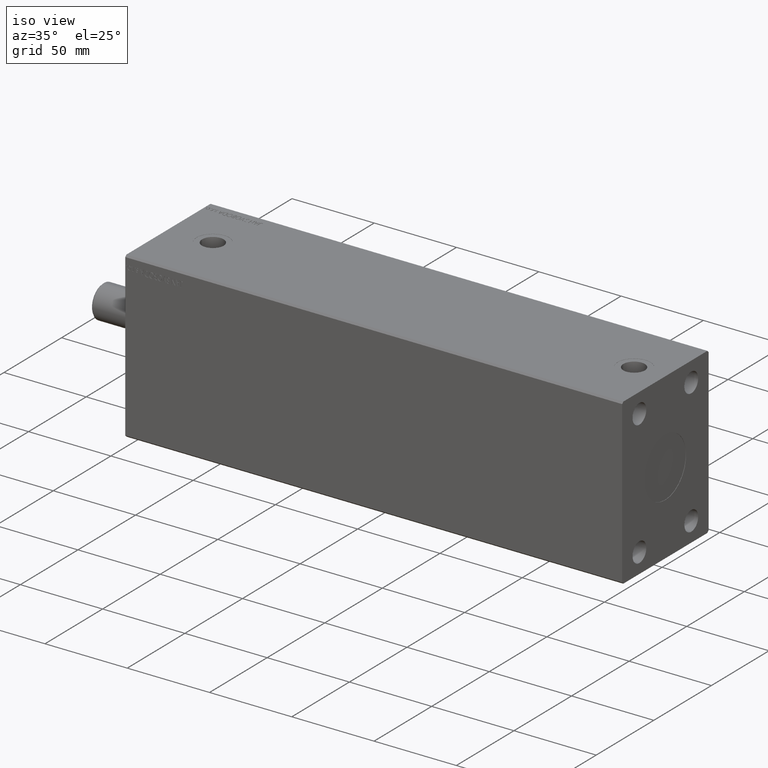
[diagram: clean part render]
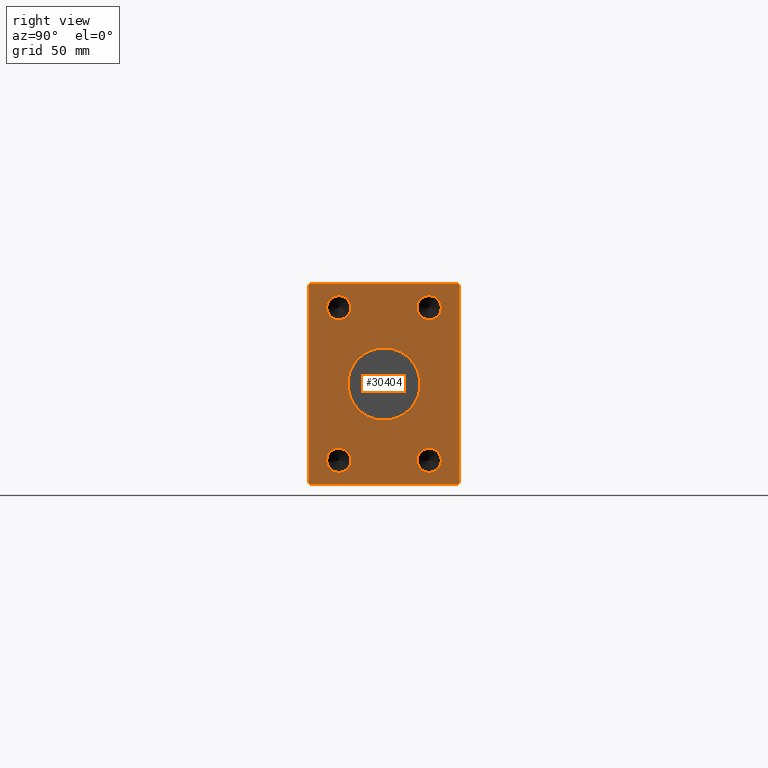
[diagram: tour spotlight — one face highlighted and labeled with its STEP entity id]
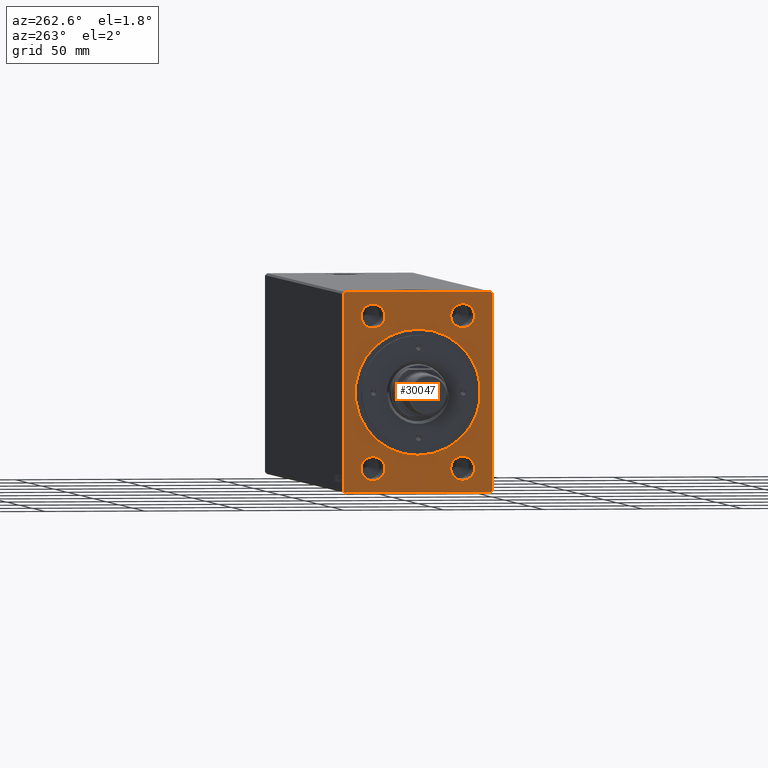
[diagram: tour spotlight — one face highlighted and labeled with its STEP entity id]
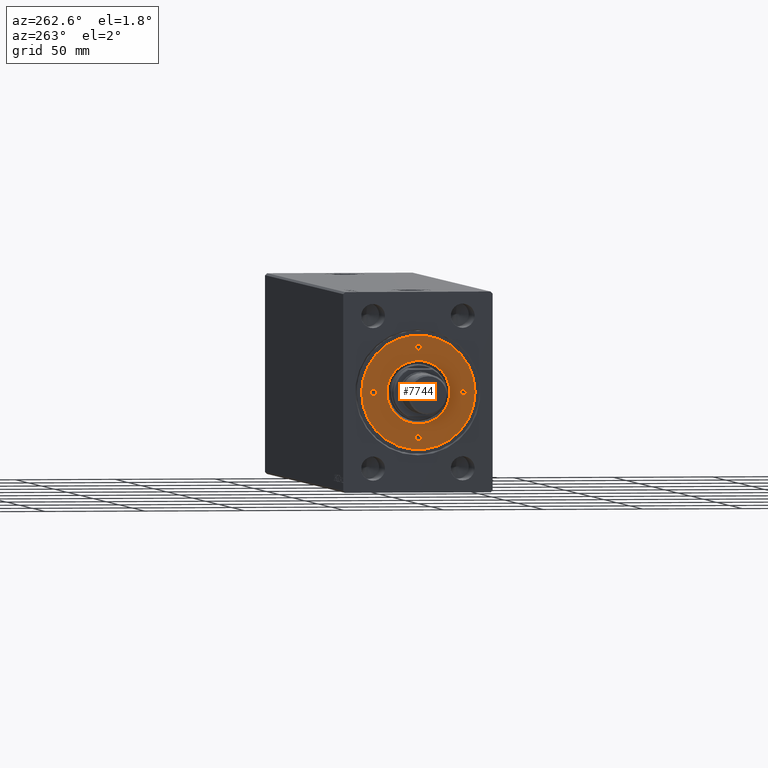
[diagram: tour spotlight — one face highlighted and labeled with its STEP entity id]
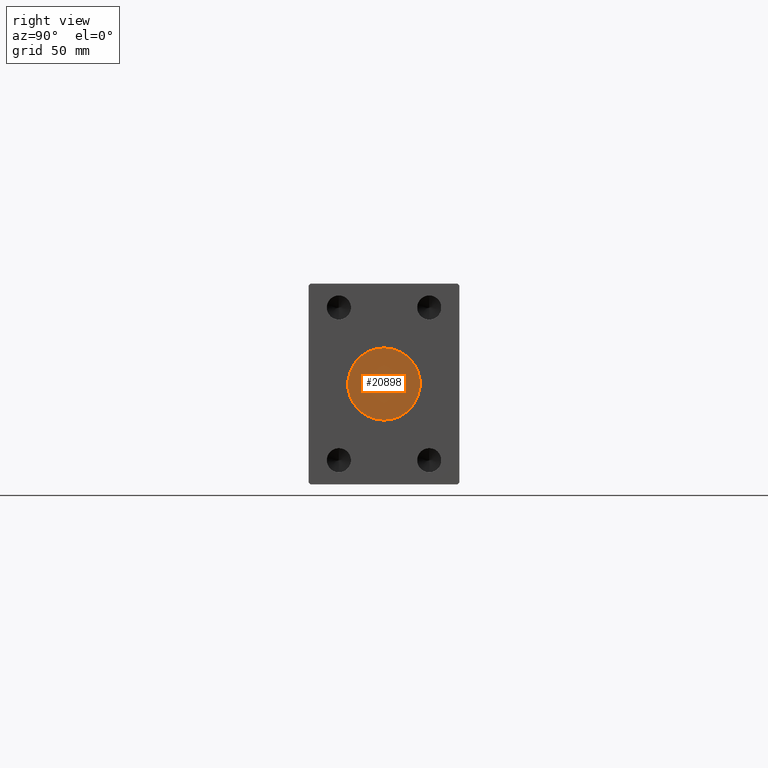
[diagram: tour spotlight — one face highlighted and labeled with its STEP entity id]
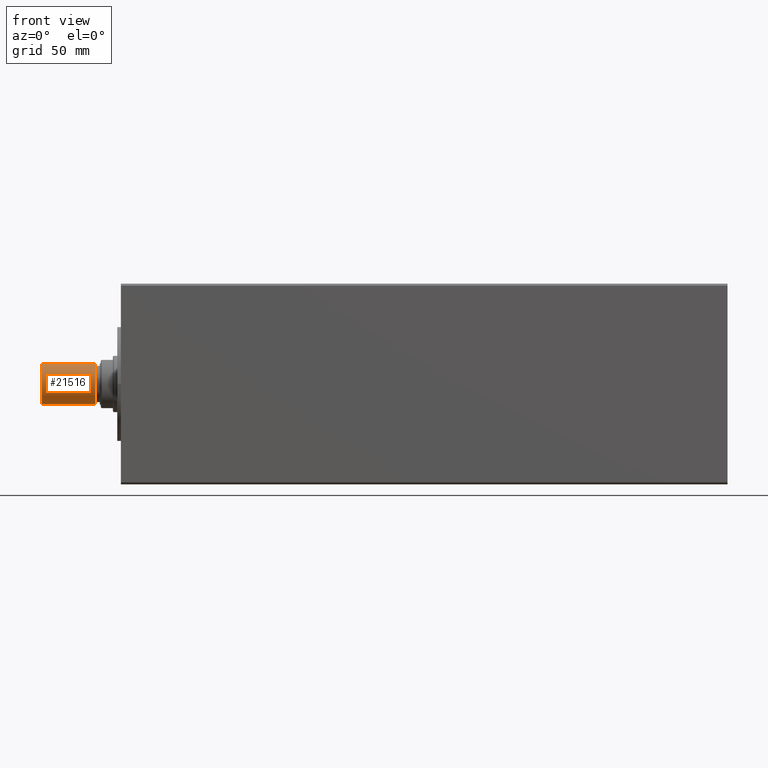
[diagram: tour spotlight — one face highlighted and labeled with its STEP entity id]
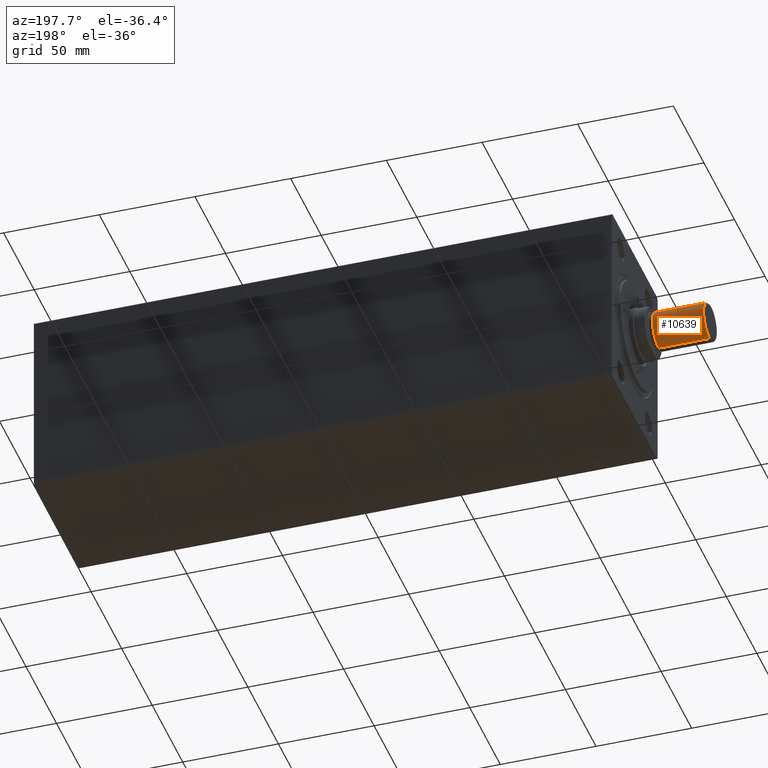
[diagram: tour spotlight — one face highlighted and labeled with its STEP entity id]
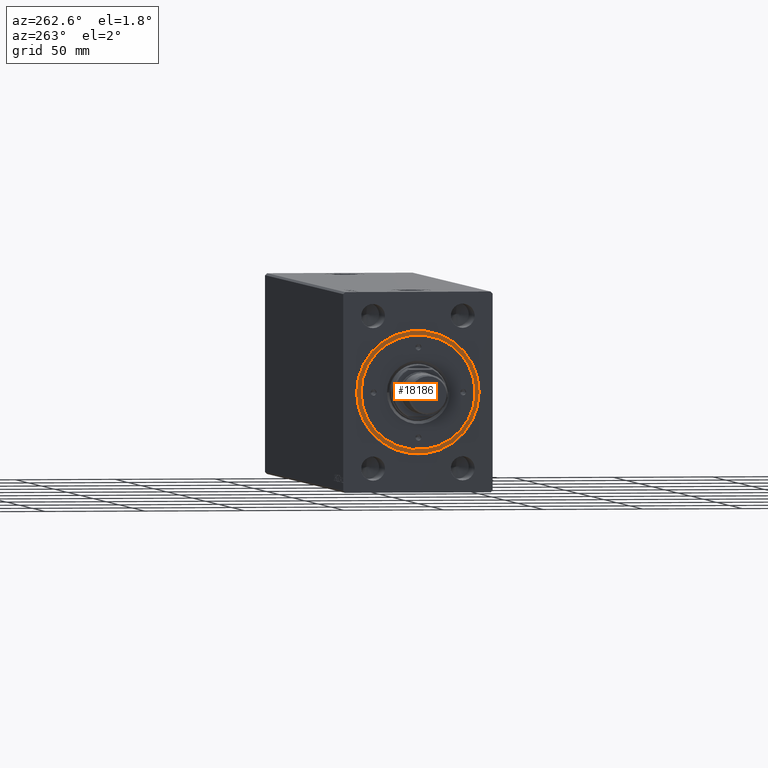
[diagram: tour spotlight — one face highlighted and labeled with its STEP entity id]
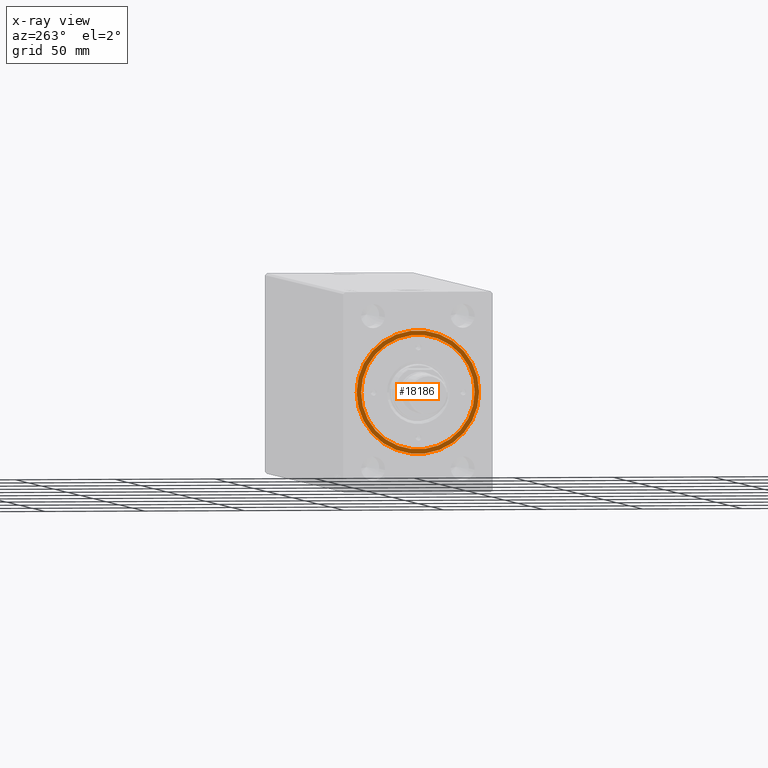
[diagram: x-ray of the same camera — body ghosted, this tour face saturated]
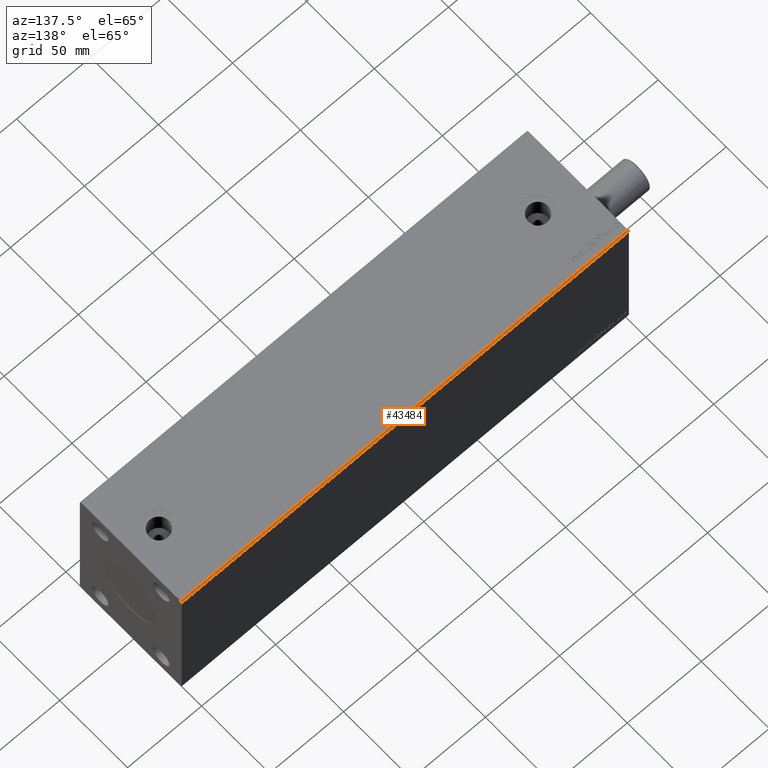
[diagram: tour spotlight — one face highlighted and labeled with its STEP entity id]
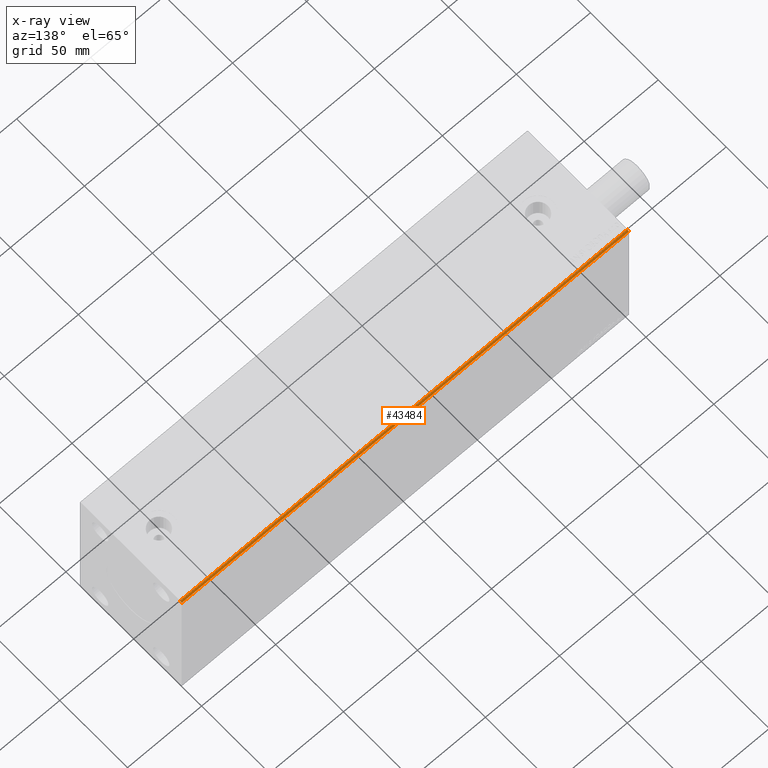
[diagram: x-ray of the same camera — body ghosted, this tour face saturated]
A machine part: a face-by-face anatomy tour. The part has 888 B-rep faces; the first image is the clean iso view, then the 8 largest visible faces are spotlighted one at a time (largest first), each with its STEP entity span.

Face 1 — right view, entity #30404. In plain terms, the highlighted planar face has unit normal (1, 0, 0).
Definition (entity closure, byte-faithful):
#447 = ORIENTED_EDGE ( 'NONE', *, *, #23403, .T. ) ;
#568 = EDGE_CURVE ( 'NONE', #40506, #15033, #5503, .T. ) ;
#651 = CIRCLE ( 'NONE', #22886, 5.999999999999998224 ) ;
#713 = LINE ( 'NONE', #14429, #23835 ) ;
#857 = CARTESIAN_POINT ( 'NONE',  ( 302.0000000000000000, 22.50000000000000000, 32.00000000000000000 ) ) ;
#1110 = VERTEX_POINT ( 'NONE', #31488 ) ;
#1357 = CARTESIAN_POINT ( 'NONE',  ( 302.0000000000000000, -22.50000000000000000, 38.00000000000000000 ) ) ;
#2164 = ORIENTED_EDGE ( 'NONE', *, *, #37255, .F. ) ;
#2390 = VERTEX_POINT ( 'NONE', #22832 ) ;
#2937 = ORIENTED_EDGE ( 'NONE', *, *, #32764, .T. ) ;
#3133 = VERTEX_POINT ( 'NONE', #10376 ) ;
#3378 = AXIS2_PLACEMENT_3D ( 'NONE', #41962, #8002, #29539 ) ;
#3633 = CIRCLE ( 'NONE', #18700, 5.999999999999998224 ) ;
#3730 = EDGE_LOOP ( 'NONE', ( #22723, #8730 ) ) ;
#3776 = CARTESIAN_POINT ( 'NONE',  ( 302.0000000000000000, 22.50000000000000000, -38.00000000000000000 ) ) ;
#5252 = CARTESIAN_POINT ( 'NONE',  ( 302.0000000000000000, -22.50000000000000000, -38.00000000000000711 ) ) ;
#5264 = ORIENTED_EDGE ( 'NONE', *, *, #33171, .F. ) ;
#5503 = LINE ( 'NONE', #36989, #29538 ) ;
#5541 = VERTEX_POINT ( 'NONE', #857 ) ;
#6251 = CARTESIAN_POINT ( 'NONE',  ( 302.0000000000000000, -37.50000000000001421, 48.99999999999998579 ) ) ;
#7141 = EDGE_LOOP ( 'NONE', ( #39308, #2937, #24388, #29770, #447, #28404, #23993, #28852 ) ) ;
#7197 = CARTESIAN_POINT ( 'NONE',  ( 302.0000000000000000, -22.50000000000000000, 38.00000000000000000 ) ) ;
#7270 = CARTESIAN_POINT ( 'NONE',  ( 302.0000000000000000, 36.50000000000000711, -50.00000000000000000 ) ) ;
#8002 = DIRECTION ( 'NONE',  ( 1.000000000000000000, 0.000000000000000000, 0.000000000000000000 ) ) ;
#8138 = CIRCLE ( 'NONE', #13887, 18.00000000000000000 ) ;
#8730 = ORIENTED_EDGE ( 'NONE', *, *, #26295, .F. ) ;
#8978 = EDGE_CURVE ( 'NONE', #9720, #2390, #19766, .T. ) ;
#9064 = DIRECTION ( 'NONE',  ( 1.000000000000000000, -0.000000000000000000, -0.000000000000000000 ) ) ;
#9440 = CARTESIAN_POINT ( 'NONE',  ( 302.0000000000000000, 37.50000000000000711, 49.00000000000000000 ) ) ;
#9720 = VERTEX_POINT ( 'NONE', #23812 ) ;
#10178 = CARTESIAN_POINT ( 'NONE',  ( 302.0000000000000000, 22.50000000000000000, -32.00000000000000000 ) ) ;
#10191 = DIRECTION ( 'NONE',  ( 0.000000000000000000, 0.000000000000000000, 1.000000000000000000 ) ) ;
#10376 = CARTESIAN_POINT ( 'NONE',  ( 302.0000000000000000, 22.50000000000000000, -44.00000000000000000 ) ) ;
#10833 = DIRECTION ( 'NONE',  ( 0.000000000000000000, 0.000000000000000000, -1.000000000000000000 ) ) ;
#10854 = CARTESIAN_POINT ( 'NONE',  ( 302.0000000000000000, -22.50000000000000000, -38.00000000000000711 ) ) ;
#11275 = CIRCLE ( 'NONE', #37821, 5.999999999999998224 ) ;
#11443 = EDGE_CURVE ( 'NONE', #3133, #31020, #26277, .T. ) ;
#12568 = CARTESIAN_POINT ( 'NONE',  ( 302.0000000000000000, -22.50000000000000000, 32.00000000000000000 ) ) ;
#12928 = CIRCLE ( 'NONE', #26543, 5.999999999999998224 ) ;
#13362 = DIRECTION ( 'NONE',  ( 0.000000000000000000, 0.000000000000000000, -1.000000000000000000 ) ) ;
#13887 = AXIS2_PLACEMENT_3D ( 'NONE', #44357, #40314, #34449 ) ;
#13901 = VERTEX_POINT ( 'NONE', #30021 ) ;
#14351 = AXIS2_PLACEMENT_3D ( 'NONE', #1357, #35756, #18431 ) ;
#14429 = CARTESIAN_POINT ( 'NONE',  ( 302.0000000000000000, 37.50000000000000711, -49.00000000000000000 ) ) ;
#14874 = DIRECTION ( 'NONE',  ( 1.000000000000000000, 0.000000000000000000, 0.000000000000000000 ) ) ;
#14950 = EDGE_LOOP ( 'NONE', ( #2164, #42348 ) ) ;
#15033 = VERTEX_POINT ( 'NONE', #30092 ) ;
#15107 = CARTESIAN_POINT ( 'NONE',  ( 302.0000000000000000, 36.50000000000000711, 50.00000000000000000 ) ) ;
#15151 = EDGE_CURVE ( 'NONE', #26651, #30592, #40240, .T. ) ;
#15838 = ORIENTED_EDGE ( 'NONE', *, *, #21412, .F. ) ;
#16093 = CARTESIAN_POINT ( 'NONE',  ( 302.0000000000000000, -22.50000000000000000, 44.00000000000000000 ) ) ;
#16699 = CARTESIAN_POINT ( 'NONE',  ( 302.0000000000000000, -37.50000000000001421, -49.00000000000000000 ) ) ;
#16955 = CARTESIAN_POINT ( 'NONE',  ( 302.0000000000000000, 2.204364238465235428E-15, 18.00000000000000000 ) ) ;
#17063 = FACE_BOUND ( 'NONE', #3730, .T. ) ;
#17343 = CARTESIAN_POINT ( 'NONE',  ( 302.0000000000000000, 0.000000000000000000, 0.000000000000000000 ) ) ;
#17424 = VECTOR ( 'NONE', #31379, 1000.000000000000114 ) ;
#18414 = EDGE_LOOP ( 'NONE', ( #26695, #25812 ) ) ;
#18431 = DIRECTION ( 'NONE',  ( 0.000000000000000000, 0.000000000000000000, -1.000000000000000000 ) ) ;
#18552 = DIRECTION ( 'NONE',  ( 1.000000000000000000, -0.000000000000000000, -0.000000000000000000 ) ) ;
#18700 = AXIS2_PLACEMENT_3D ( 'NONE', #35876, #18552, #22366 ) ;
#18908 = ORIENTED_EDGE ( 'NONE', *, *, #22369, .F. ) ;
#19766 = CIRCLE ( 'NONE', #30518, 5.999999999999998224 ) ;
#19873 = VERTEX_POINT ( 'NONE', #16093 ) ;
#20142 = EDGE_CURVE ( 'NONE', #2390, #9720, #651, .T. ) ;
#20277 = CARTESIAN_POINT ( 'NONE',  ( 302.0000000000000000, 22.50000000000000000, 38.00000000000000000 ) ) ;
#20333 = CARTESIAN_POINT ( 'NONE',  ( 302.0000000000000000, 36.50000000000000711, 50.00000000000000000 ) ) ;
#20760 = DIRECTION ( 'NONE',  ( 0.000000000000000000, 0.7071067811865474617, 0.7071067811865474617 ) ) ;
#20902 = DIRECTION ( 'NONE',  ( 1.000000000000000000, -0.000000000000000000, -0.000000000000000000 ) ) ;
#21005 = CARTESIAN_POINT ( 'NONE',  ( 302.0000000000000000, -37.50000000000001421, 48.99999999999998579 ) ) ;
#21250 = FACE_BOUND ( 'NONE', #18414, .T. ) ;
#21320 = EDGE_LOOP ( 'NONE', ( #5264, #18908 ) ) ;
#21412 = EDGE_CURVE ( 'NONE', #31020, #3133, #32251, .T. ) ;
#22205 = AXIS2_PLACEMENT_3D ( 'NONE', #3776, #31862, #24890 ) ;
#22366 = DIRECTION ( 'NONE',  ( 0.000000000000000000, 0.000000000000000000, -1.000000000000000000 ) ) ;
#22369 = EDGE_CURVE ( 'NONE', #19873, #44095, #40203, .T. ) ;
#22432 = DIRECTION ( 'NONE',  ( 0.000000000000000000, 0.000000000000000000, -1.000000000000000000 ) ) ;
#22723 = ORIENTED_EDGE ( 'NONE', *, *, #30915, .F. ) ;
#22832 = CARTESIAN_POINT ( 'NONE',  ( 302.0000000000000000, -22.50000000000000000, -44.00000000000000711 ) ) ;
#22886 = AXIS2_PLACEMENT_3D ( 'NONE', #5252, #39646, #43485 ) ;
#23027 = DIRECTION ( 'NONE',  ( 0.000000000000000000, 1.000000000000000000, 0.000000000000000000 ) ) ;
#23043 = AXIS2_PLACEMENT_3D ( 'NONE', #17343, #14874, #10833 ) ;
#23403 = EDGE_CURVE ( 'NONE', #31982, #40506, #24040, .T. ) ;
#23509 = VECTOR ( 'NONE', #43840, 1000.000000000000114 ) ;
#23812 = CARTESIAN_POINT ( 'NONE',  ( 302.0000000000000000, -22.50000000000000000, -32.00000000000000711 ) ) ;
#23835 = VECTOR ( 'NONE', #10191, 1000.000000000000000 ) ;
#23993 = ORIENTED_EDGE ( 'NONE', *, *, #29924, .T. ) ;
#24040 = LINE ( 'NONE', #37762, #28772 ) ;
#24388 = ORIENTED_EDGE ( 'NONE', *, *, #43013, .T. ) ;
#24417 = CARTESIAN_POINT ( 'NONE',  ( 302.0000000000000000, -36.50000000000001421, 49.99999999999998579 ) ) ;
#24849 = PLANE ( 'NONE',  #3378 ) ;
#24890 = DIRECTION ( 'NONE',  ( 0.000000000000000000, 0.000000000000000000, -1.000000000000000000 ) ) ;
#24951 = CARTESIAN_POINT ( 'NONE',  ( 302.0000000000000000, 37.50000000000000711, 49.00000000000000000 ) ) ;
#25140 = VECTOR ( 'NONE', #34910, 1000.000000000000000 ) ;
#25812 = ORIENTED_EDGE ( 'NONE', *, *, #8978, .F. ) ;
#26277 = CIRCLE ( 'NONE', #42833, 5.999999999999998224 ) ;
#26295 = EDGE_CURVE ( 'NONE', #13901, #5541, #3633, .T. ) ;
#26543 = AXIS2_PLACEMENT_3D ( 'NONE', #7197, #20902, #34631 ) ;
#26651 = VERTEX_POINT ( 'NONE', #24951 ) ;
#26695 = ORIENTED_EDGE ( 'NONE', *, *, #20142, .F. ) ;
#26897 = EDGE_LOOP ( 'NONE', ( #34063, #15838 ) ) ;
#27203 = VERTEX_POINT ( 'NONE', #16955 ) ;
#27268 = LINE ( 'NONE', #15107, #25140 ) ;
#27376 = CIRCLE ( 'NONE', #23043, 18.00000000000000000 ) ;
#27779 = LINE ( 'NONE', #24417, #17424 ) ;
#27926 = LINE ( 'NONE', #7270, #42541 ) ;
#28208 = FACE_OUTER_BOUND ( 'NONE', #7141, .T. ) ;
#28404 = ORIENTED_EDGE ( 'NONE', *, *, #568, .T. ) ;
#28428 = FACE_BOUND ( 'NONE', #26897, .T. ) ;
#28565 = CARTESIAN_POINT ( 'NONE',  ( 302.0000000000000000, -36.50000000000001421, 49.99999999999998579 ) ) ;
#28622 = VERTEX_POINT ( 'NONE', #6251 ) ;
#28772 = VECTOR ( 'NONE', #37548, 1000.000000000000114 ) ;
#28852 = ORIENTED_EDGE ( 'NONE', *, *, #38627, .T. ) ;
#29538 = VECTOR ( 'NONE', #23027, 1000.000000000000000 ) ;
#29539 = DIRECTION ( 'NONE',  ( 0.000000000000000000, 0.000000000000000000, -1.000000000000000000 ) ) ;
#29770 = ORIENTED_EDGE ( 'NONE', *, *, #32387, .T. ) ;
#29924 = EDGE_CURVE ( 'NONE', #15033, #1110, #27926, .T. ) ;
#30021 = CARTESIAN_POINT ( 'NONE',  ( 302.0000000000000000, 22.50000000000000000, 44.00000000000000000 ) ) ;
#30092 = CARTESIAN_POINT ( 'NONE',  ( 302.0000000000000000, 36.50000000000000711, -50.00000000000000000 ) ) ;
#30404 = ADVANCED_FACE ( 'NONE', ( #37541, #17063, #21250, #28428, #44500, #28208 ), #24849, .T. ) ;
#30518 = AXIS2_PLACEMENT_3D ( 'NONE', #10854, #38281, #13362 ) ;
#30592 = VERTEX_POINT ( 'NONE', #20333 ) ;
#30915 = EDGE_CURVE ( 'NONE', #5541, #13901, #11275, .T. ) ;
#31020 = VERTEX_POINT ( 'NONE', #10178 ) ;
#31379 = DIRECTION ( 'NONE',  ( 0.000000000000000000, -0.7071067811865474617, -0.7071067811865474617 ) ) ;
#31488 = CARTESIAN_POINT ( 'NONE',  ( 302.0000000000000000, 37.50000000000000711, -49.00000000000000000 ) ) ;
#31862 = DIRECTION ( 'NONE',  ( 1.000000000000000000, -0.000000000000000000, -0.000000000000000000 ) ) ;
#31982 = VERTEX_POINT ( 'NONE', #16699 ) ;
#32138 = CARTESIAN_POINT ( 'NONE',  ( 302.0000000000000000, 0.000000000000000000, -18.00000000000000000 ) ) ;
#32251 = CIRCLE ( 'NONE', #22205, 5.999999999999998224 ) ;
#32387 = EDGE_CURVE ( 'NONE', #28622, #31982, #37451, .T. ) ;
#32764 = EDGE_CURVE ( 'NONE', #30592, #44332, #27268, .T. ) ;
#33171 = EDGE_CURVE ( 'NONE', #44095, #19873, #12928, .T. ) ;
#33234 = CARTESIAN_POINT ( 'NONE',  ( 302.0000000000000000, 22.50000000000000000, -38.00000000000000000 ) ) ;
#34054 = VERTEX_POINT ( 'NONE', #32138 ) ;
#34063 = ORIENTED_EDGE ( 'NONE', *, *, #11443, .F. ) ;
#34235 = VECTOR ( 'NONE', #40822, 1000.000000000000000 ) ;
#34449 = DIRECTION ( 'NONE',  ( 0.000000000000000000, 0.000000000000000000, -1.000000000000000000 ) ) ;
#34631 = DIRECTION ( 'NONE',  ( 0.000000000000000000, 0.000000000000000000, -1.000000000000000000 ) ) ;
#34910 = DIRECTION ( 'NONE',  ( 0.000000000000000000, -1.000000000000000000, -1.901066822988281457E-16 ) ) ;
#35756 = DIRECTION ( 'NONE',  ( 1.000000000000000000, -0.000000000000000000, -0.000000000000000000 ) ) ;
#35876 = CARTESIAN_POINT ( 'NONE',  ( 302.0000000000000000, 22.50000000000000000, 38.00000000000000000 ) ) ;
#36989 = CARTESIAN_POINT ( 'NONE',  ( 302.0000000000000000, -36.50000000000000711, -50.00000000000000000 ) ) ;
#37255 = EDGE_CURVE ( 'NONE', #34054, #27203, #27376, .T. ) ;
#37451 = LINE ( 'NONE', #21005, #34235 ) ;
#37541 = FACE_BOUND ( 'NONE', #14950, .T. ) ;
#37548 = DIRECTION ( 'NONE',  ( 0.000000000000000000, 0.7071067811865500152, -0.7071067811865451302 ) ) ;
#37762 = CARTESIAN_POINT ( 'NONE',  ( 302.0000000000000000, -37.50000000000001421, -49.00000000000000000 ) ) ;
#37821 = AXIS2_PLACEMENT_3D ( 'NONE', #20277, #9064, #40535 ) ;
#38281 = DIRECTION ( 'NONE',  ( 1.000000000000000000, -0.000000000000000000, -0.000000000000000000 ) ) ;
#38627 = EDGE_CURVE ( 'NONE', #1110, #26651, #713, .T. ) ;
#38943 = CARTESIAN_POINT ( 'NONE',  ( 302.0000000000000000, -36.50000000000000711, -50.00000000000000000 ) ) ;
#39308 = ORIENTED_EDGE ( 'NONE', *, *, #15151, .T. ) ;
#39526 = DIRECTION ( 'NONE',  ( 1.000000000000000000, -0.000000000000000000, -0.000000000000000000 ) ) ;
#39646 = DIRECTION ( 'NONE',  ( 1.000000000000000000, -0.000000000000000000, -0.000000000000000000 ) ) ;
#40203 = CIRCLE ( 'NONE', #14351, 5.999999999999998224 ) ;
#40240 = LINE ( 'NONE', #9440, #23509 ) ;
#40314 = DIRECTION ( 'NONE',  ( 1.000000000000000000, 0.000000000000000000, 0.000000000000000000 ) ) ;
#40506 = VERTEX_POINT ( 'NONE', #38943 ) ;
#40535 = DIRECTION ( 'NONE',  ( 0.000000000000000000, 0.000000000000000000, -1.000000000000000000 ) ) ;
#40822 = DIRECTION ( 'NONE',  ( 0.000000000000000000, 0.000000000000000000, -1.000000000000000000 ) ) ;
#41962 = CARTESIAN_POINT ( 'NONE',  ( 302.0000000000000000, 0.000000000000000000, 0.000000000000000000 ) ) ;
#42348 = ORIENTED_EDGE ( 'NONE', *, *, #42860, .F. ) ;
#42541 = VECTOR ( 'NONE', #20760, 1000.000000000000114 ) ;
#42833 = AXIS2_PLACEMENT_3D ( 'NONE', #33234, #39526, #22432 ) ;
#42860 = EDGE_CURVE ( 'NONE', #27203, #34054, #8138, .T. ) ;
#43013 = EDGE_CURVE ( 'NONE', #44332, #28622, #27779, .T. ) ;
#43485 = DIRECTION ( 'NONE',  ( 0.000000000000000000, 0.000000000000000000, -1.000000000000000000 ) ) ;
#43840 = DIRECTION ( 'NONE',  ( 0.000000000000000000, -0.7071067811865474617, 0.7071067811865474617 ) ) ;
#44095 = VERTEX_POINT ( 'NONE', #12568 ) ;
#44332 = VERTEX_POINT ( 'NONE', #28565 ) ;
#44357 = CARTESIAN_POINT ( 'NONE',  ( 302.0000000000000000, 0.000000000000000000, 0.000000000000000000 ) ) ;
#44500 = FACE_BOUND ( 'NONE', #21320, .T. ) ;

Face 2 — auxiliary view, entity #30047. In plain terms, the highlighted planar face has unit normal (1, 0, 0).
Definition (entity closure, byte-faithful):
#632 = CARTESIAN_POINT ( 'NONE',  ( 0.000000000000000000, 37.50000000000000711, 49.00000000000000000 ) ) ;
#659 = ORIENTED_EDGE ( 'NONE', *, *, #23776, .F. ) ;
#807 = CARTESIAN_POINT ( 'NONE',  ( 0.000000000000000000, -36.50000000000001421, 49.99999999999998579 ) ) ;
#860 = DIRECTION ( 'NONE',  ( -1.000000000000000000, -0.000000000000000000, -0.000000000000000000 ) ) ;
#1024 = EDGE_LOOP ( 'NONE', ( #2829, #31582 ) ) ;
#1083 = EDGE_CURVE ( 'NONE', #29889, #35748, #28543, .T. ) ;
#1174 = ORIENTED_EDGE ( 'NONE', *, *, #17346, .F. ) ;
#1481 = LINE ( 'NONE', #7563, #2777 ) ;
#1598 = VERTEX_POINT ( 'NONE', #4362 ) ;
#1949 = CARTESIAN_POINT ( 'NONE',  ( 2.449293598294703949E-16, -22.50000000000000000, 44.00000000000000000 ) ) ;
#2005 = CIRCLE ( 'NONE', #32132, 5.999999999999998224 ) ;
#2526 = CARTESIAN_POINT ( 'NONE',  ( 0.000000000000000000, 0.000000000000000000, 0.000000000000000000 ) ) ;
#2744 = FACE_BOUND ( 'NONE', #7757, .T. ) ;
#2777 = VECTOR ( 'NONE', #4407, 1000.000000000000114 ) ;
#2829 = ORIENTED_EDGE ( 'NONE', *, *, #16308, .F. ) ;
#3747 = CARTESIAN_POINT ( 'NONE',  ( 0.000000000000000000, 0.000000000000000000, 0.000000000000000000 ) ) ;
#4362 = CARTESIAN_POINT ( 'NONE',  ( 2.449293598294703949E-16, 22.50000000000000000, 44.00000000000000000 ) ) ;
#4407 = DIRECTION ( 'NONE',  ( 0.000000000000000000, 0.7071067811865474617, 0.7071067811865474617 ) ) ;
#4564 = ORIENTED_EDGE ( 'NONE', *, *, #30006, .F. ) ;
#4845 = DIRECTION ( 'NONE',  ( 0.000000000000000000, 0.7071067811865500152, -0.7071067811865451302 ) ) ;
#5263 = AXIS2_PLACEMENT_3D ( 'NONE', #18382, #860, #14576 ) ;
#5938 = VECTOR ( 'NONE', #38401, 1000.000000000000114 ) ;
#7106 = ORIENTED_EDGE ( 'NONE', *, *, #1083, .F. ) ;
#7375 = LINE ( 'NONE', #632, #5938 ) ;
#7563 = CARTESIAN_POINT ( 'NONE',  ( 0.000000000000000000, 36.50000000000000711, -50.00000000000000000 ) ) ;
#7757 = EDGE_LOOP ( 'NONE', ( #659, #1174 ) ) ;
#7863 = VERTEX_POINT ( 'NONE', #13624 ) ;
#8994 = CARTESIAN_POINT ( 'NONE',  ( 2.449293598294703949E-16, -22.50000000000000000, -38.00000000000000711 ) ) ;
#9164 = CARTESIAN_POINT ( 'NONE',  ( 2.449293598294703949E-16, 22.50000000000000000, -38.00000000000000000 ) ) ;
#9502 = FACE_OUTER_BOUND ( 'NONE', #18038, .T. ) ;
#9518 = AXIS2_PLACEMENT_3D ( 'NONE', #2526, #36485, #29930 ) ;
#9700 = EDGE_CURVE ( 'NONE', #7863, #22478, #32667, .T. ) ;
#10111 = CARTESIAN_POINT ( 'NONE',  ( 2.449293598294703949E-16, -22.50000000000000000, 32.00000000000000000 ) ) ;
#10452 = AXIS2_PLACEMENT_3D ( 'NONE', #8994, #33042, #18875 ) ;
#10514 = EDGE_LOOP ( 'NONE', ( #41547, #28732 ) ) ;
#10567 = DIRECTION ( 'NONE',  ( 0.000000000000000000, 0.000000000000000000, 1.000000000000000000 ) ) ;
#10603 = CARTESIAN_POINT ( 'NONE',  ( 0.000000000000000000, 3.851514183318432716E-15, -31.45000000000005969 ) ) ;
#10883 = VERTEX_POINT ( 'NONE', #807 ) ;
#11262 = CARTESIAN_POINT ( 'NONE',  ( 0.000000000000000000, -37.50000000000001421, 48.99999999999998579 ) ) ;
#11728 = CIRCLE ( 'NONE', #5263, 5.999999999999998224 ) ;
#12185 = DIRECTION ( 'NONE',  ( 0.000000000000000000, -1.000000000000000000, -1.901066822988281457E-16 ) ) ;
#12430 = LINE ( 'NONE', #30384, #29563 ) ;
#12819 = CARTESIAN_POINT ( 'NONE',  ( 2.449293598294703949E-16, 22.50000000000000000, -38.00000000000000000 ) ) ;
#12834 = DIRECTION ( 'NONE',  ( 0.000000000000000000, 0.000000000000000000, -1.000000000000000000 ) ) ;
#13440 = CARTESIAN_POINT ( 'NONE',  ( 2.449293598294703949E-16, 22.50000000000000000, 38.00000000000000000 ) ) ;
#13624 = CARTESIAN_POINT ( 'NONE',  ( 2.449293598294703949E-16, -22.50000000000000000, -32.00000000000000711 ) ) ;
#13847 = VERTEX_POINT ( 'NONE', #1949 ) ;
#14479 = CIRCLE ( 'NONE', #25951, 31.45000000000005969 ) ;
#14576 = DIRECTION ( 'NONE',  ( 0.000000000000000000, 0.000000000000000000, 1.000000000000000000 ) ) ;
#14735 = ORIENTED_EDGE ( 'NONE', *, *, #24875, .F. ) ;
#14879 = CIRCLE ( 'NONE', #17026, 5.999999999999998224 ) ;
#14937 = CIRCLE ( 'NONE', #21399, 5.999999999999998224 ) ;
#15070 = DIRECTION ( 'NONE',  ( -1.000000000000000000, -0.000000000000000000, -0.000000000000000000 ) ) ;
#15149 = EDGE_CURVE ( 'NONE', #26598, #32466, #29942, .T. ) ;
#15277 = CIRCLE ( 'NONE', #43282, 5.999999999999998224 ) ;
#15396 = EDGE_CURVE ( 'NONE', #32466, #26598, #14879, .T. ) ;
#15908 = DIRECTION ( 'NONE',  ( 0.000000000000000000, 0.000000000000000000, 1.000000000000000000 ) ) ;
#16194 = CARTESIAN_POINT ( 'NONE',  ( 0.000000000000000000, 0.000000000000000000, 0.000000000000000000 ) ) ;
#16308 = EDGE_CURVE ( 'NONE', #1598, #37609, #2005, .T. ) ;
#16671 = EDGE_CURVE ( 'NONE', #39757, #17292, #33392, .T. ) ;
#17026 = AXIS2_PLACEMENT_3D ( 'NONE', #9164, #43568, #40182 ) ;
#17106 = DIRECTION ( 'NONE',  ( -1.000000000000000000, -0.000000000000000000, -0.000000000000000000 ) ) ;
#17292 = VERTEX_POINT ( 'NONE', #22930 ) ;
#17346 = EDGE_CURVE ( 'NONE', #22538, #13847, #44384, .T. ) ;
#17432 = ORIENTED_EDGE ( 'NONE', *, *, #18839, .F. ) ;
#17589 = VERTEX_POINT ( 'NONE', #37000 ) ;
#17856 = ORIENTED_EDGE ( 'NONE', *, *, #16671, .F. ) ;
#17982 = LINE ( 'NONE', #11262, #23917 ) ;
#18038 = EDGE_LOOP ( 'NONE', ( #40797, #7106, #17432, #17856, #44112, #14735, #4564, #23935 ) ) ;
#18058 = EDGE_CURVE ( 'NONE', #37609, #1598, #14937, .T. ) ;
#18081 = VECTOR ( 'NONE', #32160, 1000.000000000000000 ) ;
#18382 = CARTESIAN_POINT ( 'NONE',  ( 2.449293598294703949E-16, -22.50000000000000000, -38.00000000000000711 ) ) ;
#18472 = LINE ( 'NONE', #29023, #25284 ) ;
#18646 = DIRECTION ( 'NONE',  ( 0.000000000000000000, 0.000000000000000000, 1.000000000000000000 ) ) ;
#18839 = EDGE_CURVE ( 'NONE', #17292, #29889, #1481, .T. ) ;
#18875 = DIRECTION ( 'NONE',  ( 0.000000000000000000, 0.000000000000000000, 1.000000000000000000 ) ) ;
#19214 = CARTESIAN_POINT ( 'NONE',  ( 0.000000000000000000, -36.50000000000000711, -50.00000000000000000 ) ) ;
#20615 = AXIS2_PLACEMENT_3D ( 'NONE', #12819, #37311, #26505 ) ;
#21106 = CARTESIAN_POINT ( 'NONE',  ( 2.449293598294703949E-16, 22.50000000000000000, 32.00000000000000000 ) ) ;
#21399 = AXIS2_PLACEMENT_3D ( 'NONE', #36200, #15070, #18646 ) ;
#22478 = VERTEX_POINT ( 'NONE', #37753 ) ;
#22538 = VERTEX_POINT ( 'NONE', #10111 ) ;
#22748 = PLANE ( 'NONE',  #9518 ) ;
#22930 = CARTESIAN_POINT ( 'NONE',  ( 0.000000000000000000, 36.50000000000000711, -50.00000000000000000 ) ) ;
#22968 = FACE_BOUND ( 'NONE', #10514, .T. ) ;
#23266 = DIRECTION ( 'NONE',  ( 0.000000000000000000, 1.000000000000000000, 0.000000000000000000 ) ) ;
#23776 = EDGE_CURVE ( 'NONE', #13847, #22538, #15277, .T. ) ;
#23917 = VECTOR ( 'NONE', #38020, 1000.000000000000000 ) ;
#23935 = ORIENTED_EDGE ( 'NONE', *, *, #40448, .F. ) ;
#24180 = EDGE_CURVE ( 'NONE', #35748, #42435, #7375, .T. ) ;
#24875 = EDGE_CURVE ( 'NONE', #42218, #24996, #17982, .T. ) ;
#24891 = VECTOR ( 'NONE', #4845, 1000.000000000000114 ) ;
#24974 = AXIS2_PLACEMENT_3D ( 'NONE', #37558, #40490, #10567 ) ;
#24996 = VERTEX_POINT ( 'NONE', #25843 ) ;
#25182 = EDGE_CURVE ( 'NONE', #22478, #7863, #11728, .T. ) ;
#25284 = VECTOR ( 'NONE', #12185, 1000.000000000000000 ) ;
#25526 = DIRECTION ( 'NONE',  ( 1.000000000000000000, 0.000000000000000000, 0.000000000000000000 ) ) ;
#25843 = CARTESIAN_POINT ( 'NONE',  ( 0.000000000000000000, -37.50000000000001421, -49.00000000000000000 ) ) ;
#25951 = AXIS2_PLACEMENT_3D ( 'NONE', #16194, #29887, #12834 ) ;
#26181 = LINE ( 'NONE', #36090, #24891 ) ;
#26250 = EDGE_LOOP ( 'NONE', ( #36741, #36167 ) ) ;
#26505 = DIRECTION ( 'NONE',  ( 0.000000000000000000, 0.000000000000000000, 1.000000000000000000 ) ) ;
#26598 = VERTEX_POINT ( 'NONE', #38671 ) ;
#26913 = CARTESIAN_POINT ( 'NONE',  ( 0.000000000000000000, 37.50000000000000711, 49.00000000000000000 ) ) ;
#27013 = CARTESIAN_POINT ( 'NONE',  ( 2.449293598294703949E-16, -22.50000000000000000, 38.00000000000000000 ) ) ;
#28401 = EDGE_CURVE ( 'NONE', #17589, #35275, #14479, .T. ) ;
#28543 = LINE ( 'NONE', #38912, #18081 ) ;
#28732 = ORIENTED_EDGE ( 'NONE', *, *, #43058, .T. ) ;
#29023 = CARTESIAN_POINT ( 'NONE',  ( 0.000000000000000000, 36.50000000000000711, 50.00000000000000000 ) ) ;
#29563 = VECTOR ( 'NONE', #36256, 1000.000000000000114 ) ;
#29887 = DIRECTION ( 'NONE',  ( 1.000000000000000000, 0.000000000000000000, 0.000000000000000000 ) ) ;
#29889 = VERTEX_POINT ( 'NONE', #37864 ) ;
#29930 = DIRECTION ( 'NONE',  ( 0.000000000000000000, 0.000000000000000000, -1.000000000000000000 ) ) ;
#29942 = CIRCLE ( 'NONE', #20615, 5.999999999999998224 ) ;
#30006 = EDGE_CURVE ( 'NONE', #10883, #42218, #12430, .T. ) ;
#30047 = ADVANCED_FACE ( 'NONE', ( #39849, #43899, #33098, #2744, #22968, #9502 ), #22748, .F. ) ;
#30124 = ORIENTED_EDGE ( 'NONE', *, *, #15396, .F. ) ;
#30384 = CARTESIAN_POINT ( 'NONE',  ( 0.000000000000000000, -36.50000000000001421, 49.99999999999998579 ) ) ;
#30419 = EDGE_CURVE ( 'NONE', #24996, #39757, #26181, .T. ) ;
#31582 = ORIENTED_EDGE ( 'NONE', *, *, #18058, .F. ) ;
#32132 = AXIS2_PLACEMENT_3D ( 'NONE', #13440, #40641, #15908 ) ;
#32160 = DIRECTION ( 'NONE',  ( 0.000000000000000000, 0.000000000000000000, 1.000000000000000000 ) ) ;
#32466 = VERTEX_POINT ( 'NONE', #38763 ) ;
#32667 = CIRCLE ( 'NONE', #10452, 5.999999999999998224 ) ;
#33042 = DIRECTION ( 'NONE',  ( -1.000000000000000000, -0.000000000000000000, -0.000000000000000000 ) ) ;
#33098 = FACE_BOUND ( 'NONE', #34039, .T. ) ;
#33392 = LINE ( 'NONE', #19214, #42948 ) ;
#34039 = EDGE_LOOP ( 'NONE', ( #38118, #30124 ) ) ;
#34822 = CARTESIAN_POINT ( 'NONE',  ( 0.000000000000000000, -37.50000000000001421, 48.99999999999998579 ) ) ;
#35275 = VERTEX_POINT ( 'NONE', #10603 ) ;
#35748 = VERTEX_POINT ( 'NONE', #26913 ) ;
#36090 = CARTESIAN_POINT ( 'NONE',  ( 0.000000000000000000, -37.50000000000001421, -49.00000000000000000 ) ) ;
#36115 = AXIS2_PLACEMENT_3D ( 'NONE', #3747, #25526, #42640 ) ;
#36167 = ORIENTED_EDGE ( 'NONE', *, *, #25182, .F. ) ;
#36200 = CARTESIAN_POINT ( 'NONE',  ( 2.449293598294703949E-16, 22.50000000000000000, 38.00000000000000000 ) ) ;
#36256 = DIRECTION ( 'NONE',  ( 0.000000000000000000, -0.7071067811865474617, -0.7071067811865474617 ) ) ;
#36485 = DIRECTION ( 'NONE',  ( 1.000000000000000000, 0.000000000000000000, 0.000000000000000000 ) ) ;
#36741 = ORIENTED_EDGE ( 'NONE', *, *, #9700, .F. ) ;
#37000 = CARTESIAN_POINT ( 'NONE',  ( 0.000000000000000000, 0.000000000000000000, 31.45000000000005969 ) ) ;
#37311 = DIRECTION ( 'NONE',  ( -1.000000000000000000, -0.000000000000000000, -0.000000000000000000 ) ) ;
#37558 = CARTESIAN_POINT ( 'NONE',  ( 2.449293598294703949E-16, -22.50000000000000000, 38.00000000000000000 ) ) ;
#37609 = VERTEX_POINT ( 'NONE', #21106 ) ;
#37753 = CARTESIAN_POINT ( 'NONE',  ( 2.449293598294703949E-16, -22.50000000000000000, -44.00000000000000711 ) ) ;
#37864 = CARTESIAN_POINT ( 'NONE',  ( 0.000000000000000000, 37.50000000000000711, -49.00000000000000000 ) ) ;
#38020 = DIRECTION ( 'NONE',  ( 0.000000000000000000, 0.000000000000000000, -1.000000000000000000 ) ) ;
#38118 = ORIENTED_EDGE ( 'NONE', *, *, #15149, .F. ) ;
#38401 = DIRECTION ( 'NONE',  ( 0.000000000000000000, -0.7071067811865474617, 0.7071067811865474617 ) ) ;
#38671 = CARTESIAN_POINT ( 'NONE',  ( 2.449293598294703949E-16, 22.50000000000000000, -32.00000000000000000 ) ) ;
#38763 = CARTESIAN_POINT ( 'NONE',  ( 2.449293598294703949E-16, 22.50000000000000000, -44.00000000000000000 ) ) ;
#38912 = CARTESIAN_POINT ( 'NONE',  ( 0.000000000000000000, 37.50000000000000711, -49.00000000000000000 ) ) ;
#39757 = VERTEX_POINT ( 'NONE', #41441 ) ;
#39849 = FACE_BOUND ( 'NONE', #1024, .T. ) ;
#40182 = DIRECTION ( 'NONE',  ( 0.000000000000000000, 0.000000000000000000, 1.000000000000000000 ) ) ;
#40439 = CIRCLE ( 'NONE', #36115, 31.45000000000005969 ) ;
#40448 = EDGE_CURVE ( 'NONE', #42435, #10883, #18472, .T. ) ;
#40490 = DIRECTION ( 'NONE',  ( -1.000000000000000000, -0.000000000000000000, -0.000000000000000000 ) ) ;
#40640 = CARTESIAN_POINT ( 'NONE',  ( 0.000000000000000000, 36.50000000000000711, 50.00000000000000000 ) ) ;
#40641 = DIRECTION ( 'NONE',  ( -1.000000000000000000, -0.000000000000000000, -0.000000000000000000 ) ) ;
#40797 = ORIENTED_EDGE ( 'NONE', *, *, #24180, .F. ) ;
#41441 = CARTESIAN_POINT ( 'NONE',  ( 0.000000000000000000, -36.50000000000000711, -50.00000000000000000 ) ) ;
#41547 = ORIENTED_EDGE ( 'NONE', *, *, #28401, .T. ) ;
#42218 = VERTEX_POINT ( 'NONE', #34822 ) ;
#42435 = VERTEX_POINT ( 'NONE', #40640 ) ;
#42640 = DIRECTION ( 'NONE',  ( 0.000000000000000000, 0.000000000000000000, -1.000000000000000000 ) ) ;
#42948 = VECTOR ( 'NONE', #23266, 1000.000000000000000 ) ;
#43058 = EDGE_CURVE ( 'NONE', #35275, #17589, #40439, .T. ) ;
#43282 = AXIS2_PLACEMENT_3D ( 'NONE', #27013, #17106, #44116 ) ;
#43568 = DIRECTION ( 'NONE',  ( -1.000000000000000000, -0.000000000000000000, -0.000000000000000000 ) ) ;
#43899 = FACE_BOUND ( 'NONE', #26250, .T. ) ;
#44112 = ORIENTED_EDGE ( 'NONE', *, *, #30419, .F. ) ;
#44116 = DIRECTION ( 'NONE',  ( 0.000000000000000000, 0.000000000000000000, 1.000000000000000000 ) ) ;
#44384 = CIRCLE ( 'NONE', #24974, 5.999999999999998224 ) ;

Face 3 — auxiliary view, entity #7744. In plain terms, the highlighted planar face has unit normal (-1, 0, 0).
Definition (entity closure, byte-faithful):
#241 = DIRECTION ( 'NONE',  ( 1.000000000000000000, 0.000000000000000000, 0.000000000000000000 ) ) ;
#359 = AXIS2_PLACEMENT_3D ( 'NONE', #22608, #23512, #9135 ) ;
#453 = EDGE_LOOP ( 'NONE', ( #1239, #4649 ) ) ;
#530 = CIRCLE ( 'NONE', #5526, 1.499999999999997780 ) ;
#786 = VERTEX_POINT ( 'NONE', #37424 ) ;
#1239 = ORIENTED_EDGE ( 'NONE', *, *, #9413, .F. ) ;
#1415 = ORIENTED_EDGE ( 'NONE', *, *, #37793, .F. ) ;
#1831 = AXIS2_PLACEMENT_3D ( 'NONE', #16477, #19176, #15814 ) ;
#2123 = CIRCLE ( 'NONE', #10040, 15.79999999999997762 ) ;
#2424 = AXIS2_PLACEMENT_3D ( 'NONE', #24483, #41813, #11230 ) ;
#2766 = EDGE_CURVE ( 'NONE', #33311, #13028, #14573, .T. ) ;
#2940 = DIRECTION ( 'NONE',  ( -0.000000000000000000, -0.000000000000000000, 1.000000000000000000 ) ) ;
#3099 = AXIS2_PLACEMENT_3D ( 'NONE', #27053, #34468, #40777 ) ;
#3973 = CIRCLE ( 'NONE', #1831, 1.499999999999997780 ) ;
#4158 = ORIENTED_EDGE ( 'NONE', *, *, #10737, .T. ) ;
#4261 = DIRECTION ( 'NONE',  ( 0.000000000000000000, 0.000000000000000000, 1.000000000000000000 ) ) ;
#4350 = EDGE_LOOP ( 'NONE', ( #23850, #44407 ) ) ;
#4649 = ORIENTED_EDGE ( 'NONE', *, *, #15628, .F. ) ;
#5210 = CARTESIAN_POINT ( 'NONE',  ( 0.000000000000000000, 0.000000000000000000, 9.999999999999998224 ) ) ;
#5477 = DIRECTION ( 'NONE',  ( -0.000000000000000000, -0.000000000000000000, -1.000000000000000000 ) ) ;
#5518 = VERTEX_POINT ( 'NONE', #41354 ) ;
#5526 = AXIS2_PLACEMENT_3D ( 'NONE', #15178, #25731, #18755 ) ;
#6154 = DIRECTION ( 'NONE',  ( 1.000000000000000000, 0.000000000000000000, 0.000000000000000000 ) ) ;
#7182 = EDGE_CURVE ( 'NONE', #13028, #33311, #16116, .T. ) ;
#7419 = CIRCLE ( 'NONE', #2424, 1.499999999999996891 ) ;
#7744 = ADVANCED_FACE ( 'NONE', ( #13188, #29559, #29788, #9816, #9358, #32735 ), #23051, .T. ) ;
#8131 = VERTEX_POINT ( 'NONE', #15716 ) ;
#9135 = DIRECTION ( 'NONE',  ( 1.000000000000000000, 0.000000000000000000, -0.000000000000000000 ) ) ;
#9358 = FACE_BOUND ( 'NONE', #23772, .T. ) ;
#9413 = EDGE_CURVE ( 'NONE', #17607, #23742, #23370, .T. ) ;
#9474 = DIRECTION ( 'NONE',  ( 1.000000000000000000, 0.000000000000000000, 0.000000000000000000 ) ) ;
#9816 = FACE_BOUND ( 'NONE', #4350, .T. ) ;
#10040 = AXIS2_PLACEMENT_3D ( 'NONE', #32909, #5477, #6154 ) ;
#10737 = EDGE_CURVE ( 'NONE', #20182, #786, #25534, .T. ) ;
#11173 = VERTEX_POINT ( 'NONE', #29218 ) ;
#11230 = DIRECTION ( 'NONE',  ( 1.000000000000000000, 0.000000000000000000, 0.000000000000000000 ) ) ;
#11474 = AXIS2_PLACEMENT_3D ( 'NONE', #35294, #4261, #241 ) ;
#11749 = DIRECTION ( 'NONE',  ( 1.000000000000000000, 0.000000000000000000, 0.000000000000000000 ) ) ;
#13028 = VERTEX_POINT ( 'NONE', #41657 ) ;
#13188 = FACE_BOUND ( 'NONE', #34625, .T. ) ;
#13454 = DIRECTION ( 'NONE',  ( 1.000000000000000000, 0.000000000000000000, 0.000000000000000000 ) ) ;
#13474 = CARTESIAN_POINT ( 'NONE',  ( -28.50000000000000000, 0.000000000000000000, 9.999999999999998224 ) ) ;
#14463 = ORIENTED_EDGE ( 'NONE', *, *, #14991, .F. ) ;
#14573 = CIRCLE ( 'NONE', #3099, 1.499999999999996891 ) ;
#14991 = EDGE_CURVE ( 'NONE', #11173, #22051, #3973, .T. ) ;
#15178 = CARTESIAN_POINT ( 'NONE',  ( 22.50000000000000000, 0.000000000000000000, 9.999999999999998224 ) ) ;
#15628 = EDGE_CURVE ( 'NONE', #23742, #17607, #530, .T. ) ;
#15716 = CARTESIAN_POINT ( 'NONE',  ( 28.50000000000000000, 3.490243377569956456E-15, 9.999999999999998224 ) ) ;
#15814 = DIRECTION ( 'NONE',  ( 1.000000000000000000, 0.000000000000000000, 0.000000000000000000 ) ) ;
#16116 = CIRCLE ( 'NONE', #33350, 1.499999999999996891 ) ;
#16477 = CARTESIAN_POINT ( 'NONE',  ( -22.50000000000000000, 0.000000000000000000, 9.999999999999998224 ) ) ;
#17607 = VERTEX_POINT ( 'NONE', #23038 ) ;
#18755 = DIRECTION ( 'NONE',  ( 1.000000000000000000, 0.000000000000000000, 0.000000000000000000 ) ) ;
#19138 = DIRECTION ( 'NONE',  ( 1.000000000000000000, 0.000000000000000000, 0.000000000000000000 ) ) ;
#19176 = DIRECTION ( 'NONE',  ( -0.000000000000000000, -0.000000000000000000, 1.000000000000000000 ) ) ;
#19493 = DIRECTION ( 'NONE',  ( 1.000000000000000000, 0.000000000000000000, 0.000000000000000000 ) ) ;
#20182 = VERTEX_POINT ( 'NONE', #29498 ) ;
#20933 = EDGE_CURVE ( 'NONE', #786, #20182, #2123, .T. ) ;
#21130 = DIRECTION ( 'NONE',  ( -0.000000000000000000, -0.000000000000000000, 1.000000000000000000 ) ) ;
#22051 = VERTEX_POINT ( 'NONE', #32872 ) ;
#22608 = CARTESIAN_POINT ( 'NONE',  ( 0.000000000000000000, 0.000000000000000000, 9.999999999999998224 ) ) ;
#23038 = CARTESIAN_POINT ( 'NONE',  ( 23.99999999999999645, 0.000000000000000000, 9.999999999999998224 ) ) ;
#23051 = PLANE ( 'NONE',  #359 ) ;
#23121 = CARTESIAN_POINT ( 'NONE',  ( -1.499999999999996891, -22.50000000000000000, 9.999999999999998224 ) ) ;
#23154 = VERTEX_POINT ( 'NONE', #29210 ) ;
#23370 = CIRCLE ( 'NONE', #36274, 1.499999999999997780 ) ;
#23417 = CARTESIAN_POINT ( 'NONE',  ( 21.00000000000000000, 1.836970198721027222E-16, 9.999999999999998224 ) ) ;
#23512 = DIRECTION ( 'NONE',  ( 0.000000000000000000, 0.000000000000000000, 1.000000000000000000 ) ) ;
#23742 = VERTEX_POINT ( 'NONE', #23417 ) ;
#23772 = EDGE_LOOP ( 'NONE', ( #24829, #4158 ) ) ;
#23850 = ORIENTED_EDGE ( 'NONE', *, *, #7182, .F. ) ;
#24483 = CARTESIAN_POINT ( 'NONE',  ( 0.000000000000000000, 22.50000000000000000, 9.999999999999998224 ) ) ;
#24829 = ORIENTED_EDGE ( 'NONE', *, *, #20933, .T. ) ;
#25090 = CIRCLE ( 'NONE', #38043, 1.499999999999996891 ) ;
#25534 = CIRCLE ( 'NONE', #39189, 15.79999999999997762 ) ;
#25731 = DIRECTION ( 'NONE',  ( -0.000000000000000000, -0.000000000000000000, 1.000000000000000000 ) ) ;
#26317 = CARTESIAN_POINT ( 'NONE',  ( 0.000000000000000000, -22.50000000000000000, 9.999999999999998224 ) ) ;
#27053 = CARTESIAN_POINT ( 'NONE',  ( 0.000000000000000000, -22.50000000000000000, 9.999999999999998224 ) ) ;
#29210 = CARTESIAN_POINT ( 'NONE',  ( -1.499999999999996891, 22.50000000000000000, 9.999999999999998224 ) ) ;
#29218 = CARTESIAN_POINT ( 'NONE',  ( -21.00000000000000000, 0.000000000000000000, 9.999999999999998224 ) ) ;
#29498 = CARTESIAN_POINT ( 'NONE',  ( -15.79999999999997407, 1.934941942652814868E-15, 9.999999999999998224 ) ) ;
#29559 = FACE_BOUND ( 'NONE', #43139, .T. ) ;
#29574 = AXIS2_PLACEMENT_3D ( 'NONE', #5210, #35357, #19138 ) ;
#29788 = FACE_BOUND ( 'NONE', #453, .T. ) ;
#30198 = EDGE_LOOP ( 'NONE', ( #43048, #41814 ) ) ;
#30372 = ORIENTED_EDGE ( 'NONE', *, *, #43980, .F. ) ;
#30515 = CARTESIAN_POINT ( 'NONE',  ( -22.50000000000000000, 0.000000000000000000, 9.999999999999998224 ) ) ;
#31350 = DIRECTION ( 'NONE',  ( -0.000000000000000000, -0.000000000000000000, 1.000000000000000000 ) ) ;
#32735 = FACE_OUTER_BOUND ( 'NONE', #30198, .T. ) ;
#32771 = DIRECTION ( 'NONE',  ( -0.000000000000000000, -0.000000000000000000, -1.000000000000000000 ) ) ;
#32872 = CARTESIAN_POINT ( 'NONE',  ( -23.99999999999999645, 1.836970198721027222E-16, 9.999999999999998224 ) ) ;
#32909 = CARTESIAN_POINT ( 'NONE',  ( 0.000000000000000000, 0.000000000000000000, 9.999999999999998224 ) ) ;
#33131 = EDGE_CURVE ( 'NONE', #40880, #8131, #37349, .T. ) ;
#33135 = AXIS2_PLACEMENT_3D ( 'NONE', #30515, #36838, #13454 ) ;
#33311 = VERTEX_POINT ( 'NONE', #23121 ) ;
#33350 = AXIS2_PLACEMENT_3D ( 'NONE', #26317, #2940, #9474 ) ;
#33666 = EDGE_CURVE ( 'NONE', #5518, #23154, #25090, .T. ) ;
#33847 = CIRCLE ( 'NONE', #33135, 1.499999999999997780 ) ;
#34468 = DIRECTION ( 'NONE',  ( -0.000000000000000000, -0.000000000000000000, 1.000000000000000000 ) ) ;
#34625 = EDGE_LOOP ( 'NONE', ( #14463, #1415 ) ) ;
#34747 = CARTESIAN_POINT ( 'NONE',  ( 0.000000000000000000, 22.50000000000000000, 9.999999999999998224 ) ) ;
#35082 = CARTESIAN_POINT ( 'NONE',  ( 22.50000000000000000, 0.000000000000000000, 9.999999999999998224 ) ) ;
#35294 = CARTESIAN_POINT ( 'NONE',  ( 0.000000000000000000, 0.000000000000000000, 9.999999999999998224 ) ) ;
#35302 = DIRECTION ( 'NONE',  ( 1.000000000000000000, 0.000000000000000000, 0.000000000000000000 ) ) ;
#35357 = DIRECTION ( 'NONE',  ( 0.000000000000000000, 0.000000000000000000, 1.000000000000000000 ) ) ;
#36274 = AXIS2_PLACEMENT_3D ( 'NONE', #35082, #21130, #35302 ) ;
#36838 = DIRECTION ( 'NONE',  ( -0.000000000000000000, -0.000000000000000000, 1.000000000000000000 ) ) ;
#37349 = CIRCLE ( 'NONE', #11474, 28.50000000000000000 ) ;
#37424 = CARTESIAN_POINT ( 'NONE',  ( 15.79999999999997407, 0.000000000000000000, 9.999999999999998224 ) ) ;
#37793 = EDGE_CURVE ( 'NONE', #22051, #11173, #33847, .T. ) ;
#38043 = AXIS2_PLACEMENT_3D ( 'NONE', #34747, #31350, #11749 ) ;
#39189 = AXIS2_PLACEMENT_3D ( 'NONE', #39295, #32771, #19493 ) ;
#39295 = CARTESIAN_POINT ( 'NONE',  ( 0.000000000000000000, 0.000000000000000000, 9.999999999999998224 ) ) ;
#39433 = ORIENTED_EDGE ( 'NONE', *, *, #33666, .F. ) ;
#40386 = EDGE_CURVE ( 'NONE', #8131, #40880, #42519, .T. ) ;
#40777 = DIRECTION ( 'NONE',  ( 1.000000000000000000, 0.000000000000000000, 0.000000000000000000 ) ) ;
#40880 = VERTEX_POINT ( 'NONE', #13474 ) ;
#41354 = CARTESIAN_POINT ( 'NONE',  ( 1.499999999999996891, 22.50000000000000000, 9.999999999999998224 ) ) ;
#41657 = CARTESIAN_POINT ( 'NONE',  ( 1.499999999999996891, -22.50000000000000000, 9.999999999999998224 ) ) ;
#41813 = DIRECTION ( 'NONE',  ( -0.000000000000000000, -0.000000000000000000, 1.000000000000000000 ) ) ;
#41814 = ORIENTED_EDGE ( 'NONE', *, *, #40386, .T. ) ;
#42519 = CIRCLE ( 'NONE', #29574, 28.50000000000000000 ) ;
#43048 = ORIENTED_EDGE ( 'NONE', *, *, #33131, .T. ) ;
#43139 = EDGE_LOOP ( 'NONE', ( #39433, #30372 ) ) ;
#43980 = EDGE_CURVE ( 'NONE', #23154, #5518, #7419, .T. ) ;
#44407 = ORIENTED_EDGE ( 'NONE', *, *, #2766, .F. ) ;

Face 4 — right view, entity #20898. In plain terms, the highlighted planar face has unit normal (1, 0, 0).
Definition (entity closure, byte-faithful):
#11655 = DIRECTION ( 'NONE',  ( 1.000000000000000000, 0.000000000000000000, 0.000000000000000000 ) ) ;
#11759 = EDGE_CURVE ( 'NONE', #40567, #26764, #18378, .T. ) ;
#13633 = AXIS2_PLACEMENT_3D ( 'NONE', #23000, #22559, #19405 ) ;
#15394 = ORIENTED_EDGE ( 'NONE', *, *, #26051, .T. ) ;
#16051 = AXIS2_PLACEMENT_3D ( 'NONE', #27246, #11655, #30827 ) ;
#18378 = CIRCLE ( 'NONE', #36338, 18.00000000000000000 ) ;
#19405 = DIRECTION ( 'NONE',  ( 0.000000000000000000, 0.000000000000000000, -1.000000000000000000 ) ) ;
#20898 = ADVANCED_FACE ( 'NONE', ( #29506 ), #29288, .T. ) ;
#21955 = ORIENTED_EDGE ( 'NONE', *, *, #11759, .T. ) ;
#22559 = DIRECTION ( 'NONE',  ( 1.000000000000000000, 0.000000000000000000, 0.000000000000000000 ) ) ;
#23000 = CARTESIAN_POINT ( 'NONE',  ( 301.8000000000000114, 0.000000000000000000, 0.000000000000000000 ) ) ;
#25446 = EDGE_LOOP ( 'NONE', ( #15394, #21955 ) ) ;
#26051 = EDGE_CURVE ( 'NONE', #26764, #40567, #36178, .T. ) ;
#26764 = VERTEX_POINT ( 'NONE', #37307 ) ;
#27246 = CARTESIAN_POINT ( 'NONE',  ( 301.8000000000000114, 0.000000000000000000, 0.000000000000000000 ) ) ;
#27522 = DIRECTION ( 'NONE',  ( 1.000000000000000000, 0.000000000000000000, 0.000000000000000000 ) ) ;
#29288 = PLANE ( 'NONE',  #13633 ) ;
#29506 = FACE_OUTER_BOUND ( 'NONE', #25446, .T. ) ;
#30827 = DIRECTION ( 'NONE',  ( 0.000000000000000000, 0.000000000000000000, -1.000000000000000000 ) ) ;
#36178 = CIRCLE ( 'NONE', #16051, 18.00000000000000000 ) ;
#36338 = AXIS2_PLACEMENT_3D ( 'NONE', #44412, #27522, #41262 ) ;
#37307 = CARTESIAN_POINT ( 'NONE',  ( 301.8000000000000114, 0.000000000000000000, -18.00000000000000000 ) ) ;
#40567 = VERTEX_POINT ( 'NONE', #41173 ) ;
#41173 = CARTESIAN_POINT ( 'NONE',  ( 301.8000000000000114, 2.204364238465235428E-15, 18.00000000000000000 ) ) ;
#41262 = DIRECTION ( 'NONE',  ( 0.000000000000000000, 0.000000000000000000, -1.000000000000000000 ) ) ;
#44412 = CARTESIAN_POINT ( 'NONE',  ( 301.8000000000000114, 0.000000000000000000, 0.000000000000000000 ) ) ;

Face 5 — front view, entity #21516. In plain terms, the highlighted cylindrical surface (edge-blend (fillet) strip) has radius 10 mm, axis along (-1, 0, 0).
Definition (entity closure, byte-faithful):
#1425 = EDGE_CURVE ( 'NONE', #34486, #28422, #43540, .T. ) ;
#2174 = DIRECTION ( 'NONE',  ( -0.000000000000000000, -0.000000000000000000, -1.000000000000000000 ) ) ;
#2663 = ORIENTED_EDGE ( 'NONE', *, *, #7518, .T. ) ;
#5373 = ORIENTED_EDGE ( 'NONE', *, *, #1425, .F. ) ;
#7518 = EDGE_CURVE ( 'NONE', #31451, #28422, #8926, .T. ) ;
#8926 = CIRCLE ( 'NONE', #34067, 10.00000000000000000 ) ;
#10413 = DIRECTION ( 'NONE',  ( -0.000000000000000000, -0.000000000000000000, -1.000000000000000000 ) ) ;
#13778 = CARTESIAN_POINT ( 'NONE',  ( -10.00000000000000000, 0.000000000000000000, 27.50000000000000000 ) ) ;
#14621 = ORIENTED_EDGE ( 'NONE', *, *, #43534, .T. ) ;
#15667 = CYLINDRICAL_SURFACE ( 'NONE', #35860, 10.00000000000000000 ) ;
#17499 = EDGE_LOOP ( 'NONE', ( #5373, #39031, #14621, #2663 ) ) ;
#19013 = DIRECTION ( 'NONE',  ( -0.000000000000000000, -0.000000000000000000, -1.000000000000000000 ) ) ;
#21516 = ADVANCED_FACE ( 'NONE', ( #36361 ), #15667, .T. ) ;
#22215 = DIRECTION ( 'NONE',  ( 1.000000000000000000, 0.000000000000000000, 0.000000000000000000 ) ) ;
#22402 = DIRECTION ( 'NONE',  ( -1.000000000000000000, 0.000000000000000000, 0.000000000000000000 ) ) ;
#23723 = CARTESIAN_POINT ( 'NONE',  ( -10.00000000000000000, 0.000000000000000000, 27.50000000000000000 ) ) ;
#23933 = CARTESIAN_POINT ( 'NONE',  ( 0.000000000000000000, 0.000000000000000000, 27.50000000000000000 ) ) ;
#24165 = CIRCLE ( 'NONE', #34263, 10.00000000000000000 ) ;
#24584 = DIRECTION ( 'NONE',  ( 0.000000000000000000, 0.000000000000000000, 1.000000000000000000 ) ) ;
#25371 = CARTESIAN_POINT ( 'NONE',  ( 0.000000000000000000, 0.000000000000000000, 0.7999999999999986011 ) ) ;
#25775 = CARTESIAN_POINT ( 'NONE',  ( 0.000000000000000000, 0.000000000000000000, 27.50000000000000000 ) ) ;
#28422 = VERTEX_POINT ( 'NONE', #41141 ) ;
#30737 = EDGE_CURVE ( 'NONE', #31736, #34486, #24165, .T. ) ;
#31062 = LINE ( 'NONE', #13778, #38298 ) ;
#31451 = VERTEX_POINT ( 'NONE', #40431 ) ;
#31736 = VERTEX_POINT ( 'NONE', #23723 ) ;
#33402 = CARTESIAN_POINT ( 'NONE',  ( 10.00000000000000000, 1.224646799147353256E-15, 27.50000000000000000 ) ) ;
#34067 = AXIS2_PLACEMENT_3D ( 'NONE', #25371, #38653, #22215 ) ;
#34263 = AXIS2_PLACEMENT_3D ( 'NONE', #23933, #24584, #34500 ) ;
#34486 = VERTEX_POINT ( 'NONE', #40732 ) ;
#34500 = DIRECTION ( 'NONE',  ( 1.000000000000000000, 0.000000000000000000, 0.000000000000000000 ) ) ;
#35860 = AXIS2_PLACEMENT_3D ( 'NONE', #25775, #2174, #22402 ) ;
#36361 = FACE_OUTER_BOUND ( 'NONE', #17499, .T. ) ;
#38298 = VECTOR ( 'NONE', #10413, 1000.000000000000000 ) ;
#38653 = DIRECTION ( 'NONE',  ( -0.000000000000000000, -0.000000000000000000, 1.000000000000000000 ) ) ;
#39031 = ORIENTED_EDGE ( 'NONE', *, *, #30737, .F. ) ;
#40431 = CARTESIAN_POINT ( 'NONE',  ( -10.00000000000000000, 0.000000000000000000, 0.7999999999999986011 ) ) ;
#40732 = CARTESIAN_POINT ( 'NONE',  ( 10.00000000000000000, 1.224646799147353256E-15, 27.50000000000000000 ) ) ;
#41141 = CARTESIAN_POINT ( 'NONE',  ( 10.00000000000000000, 1.224646799147353256E-15, 0.7999999999999986011 ) ) ;
#42543 = VECTOR ( 'NONE', #19013, 1000.000000000000000 ) ;
#43534 = EDGE_CURVE ( 'NONE', #31736, #31451, #31062, .T. ) ;
#43540 = LINE ( 'NONE', #33402, #42543 ) ;

Face 6 — auxiliary view, entity #10639. In plain terms, the highlighted cylindrical surface (edge-blend (fillet) strip) has radius 10 mm, axis along (-1, 0, 0).
Definition (entity closure, byte-faithful):
#210 = FACE_OUTER_BOUND ( 'NONE', #1029, .T. ) ;
#1029 = EDGE_LOOP ( 'NONE', ( #10783, #9654, #2212, #17313 ) ) ;
#1425 = EDGE_CURVE ( 'NONE', #34486, #28422, #43540, .T. ) ;
#2212 = ORIENTED_EDGE ( 'NONE', *, *, #30049, .T. ) ;
#3059 = CIRCLE ( 'NONE', #34636, 10.00000000000000000 ) ;
#5672 = DIRECTION ( 'NONE',  ( 1.000000000000000000, 0.000000000000000000, 0.000000000000000000 ) ) ;
#7168 = CARTESIAN_POINT ( 'NONE',  ( 0.000000000000000000, 0.000000000000000000, 27.50000000000000000 ) ) ;
#9599 = DIRECTION ( 'NONE',  ( 0.000000000000000000, 0.000000000000000000, 1.000000000000000000 ) ) ;
#9654 = ORIENTED_EDGE ( 'NONE', *, *, #1425, .T. ) ;
#10413 = DIRECTION ( 'NONE',  ( -0.000000000000000000, -0.000000000000000000, -1.000000000000000000 ) ) ;
#10639 = ADVANCED_FACE ( 'NONE', ( #210 ), #13930, .T. ) ;
#10783 = ORIENTED_EDGE ( 'NONE', *, *, #40280, .F. ) ;
#10927 = CIRCLE ( 'NONE', #25990, 10.00000000000000000 ) ;
#13103 = DIRECTION ( 'NONE',  ( -0.000000000000000000, -0.000000000000000000, 1.000000000000000000 ) ) ;
#13778 = CARTESIAN_POINT ( 'NONE',  ( -10.00000000000000000, 0.000000000000000000, 27.50000000000000000 ) ) ;
#13930 = CYLINDRICAL_SURFACE ( 'NONE', #15501, 10.00000000000000000 ) ;
#15501 = AXIS2_PLACEMENT_3D ( 'NONE', #7168, #41573, #17500 ) ;
#17313 = ORIENTED_EDGE ( 'NONE', *, *, #43534, .F. ) ;
#17500 = DIRECTION ( 'NONE',  ( -1.000000000000000000, 0.000000000000000000, 0.000000000000000000 ) ) ;
#19013 = DIRECTION ( 'NONE',  ( -0.000000000000000000, -0.000000000000000000, -1.000000000000000000 ) ) ;
#19460 = CARTESIAN_POINT ( 'NONE',  ( 0.000000000000000000, 0.000000000000000000, 27.50000000000000000 ) ) ;
#23196 = CARTESIAN_POINT ( 'NONE',  ( 0.000000000000000000, 0.000000000000000000, 0.7999999999999986011 ) ) ;
#23723 = CARTESIAN_POINT ( 'NONE',  ( -10.00000000000000000, 0.000000000000000000, 27.50000000000000000 ) ) ;
#25990 = AXIS2_PLACEMENT_3D ( 'NONE', #19460, #9599, #40160 ) ;
#28422 = VERTEX_POINT ( 'NONE', #41141 ) ;
#30049 = EDGE_CURVE ( 'NONE', #28422, #31451, #3059, .T. ) ;
#31062 = LINE ( 'NONE', #13778, #38298 ) ;
#31451 = VERTEX_POINT ( 'NONE', #40431 ) ;
#31736 = VERTEX_POINT ( 'NONE', #23723 ) ;
#33402 = CARTESIAN_POINT ( 'NONE',  ( 10.00000000000000000, 1.224646799147353256E-15, 27.50000000000000000 ) ) ;
#34486 = VERTEX_POINT ( 'NONE', #40732 ) ;
#34636 = AXIS2_PLACEMENT_3D ( 'NONE', #23196, #13103, #5672 ) ;
#38298 = VECTOR ( 'NONE', #10413, 1000.000000000000000 ) ;
#40160 = DIRECTION ( 'NONE',  ( 1.000000000000000000, 0.000000000000000000, 0.000000000000000000 ) ) ;
#40280 = EDGE_CURVE ( 'NONE', #34486, #31736, #10927, .T. ) ;
#40431 = CARTESIAN_POINT ( 'NONE',  ( -10.00000000000000000, 0.000000000000000000, 0.7999999999999986011 ) ) ;
#40732 = CARTESIAN_POINT ( 'NONE',  ( 10.00000000000000000, 1.224646799147353256E-15, 27.50000000000000000 ) ) ;
#41141 = CARTESIAN_POINT ( 'NONE',  ( 10.00000000000000000, 1.224646799147353256E-15, 0.7999999999999986011 ) ) ;
#41573 = DIRECTION ( 'NONE',  ( -0.000000000000000000, -0.000000000000000000, -1.000000000000000000 ) ) ;
#42543 = VECTOR ( 'NONE', #19013, 1000.000000000000000 ) ;
#43534 = EDGE_CURVE ( 'NONE', #31736, #31451, #31062, .T. ) ;
#43540 = LINE ( 'NONE', #33402, #42543 ) ;

Face 7 — auxiliary view, entity #18186. An x-ray twin of the same camera follows (body ghosted, this face saturated) — the face is partly hidden behind the body. In plain terms, the highlighted planar face has unit normal (-1, 0, 0).
Definition (entity closure, byte-faithful):
#880 = AXIS2_PLACEMENT_3D ( 'NONE', #3657, #41878, #17796 ) ;
#2009 = DIRECTION ( 'NONE',  ( 1.000000000000000000, 0.000000000000000000, 0.000000000000000000 ) ) ;
#3657 = CARTESIAN_POINT ( 'NONE',  ( 0.000000000000000000, 0.000000000000000000, 8.199999999999999289 ) ) ;
#3693 = VERTEX_POINT ( 'NONE', #7257 ) ;
#5631 = FACE_BOUND ( 'NONE', #26193, .T. ) ;
#5724 = CIRCLE ( 'NONE', #17205, 30.75000000000000355 ) ;
#7257 = CARTESIAN_POINT ( 'NONE',  ( -30.75000000000000355, 0.000000000000000000, 8.199999999999999289 ) ) ;
#8983 = CARTESIAN_POINT ( 'NONE',  ( 0.000000000000000000, 0.000000000000000000, 8.199999999999999289 ) ) ;
#9695 = DIRECTION ( 'NONE',  ( 0.000000000000000000, 0.000000000000000000, 1.000000000000000000 ) ) ;
#12136 = DIRECTION ( 'NONE',  ( 0.000000000000000000, 0.000000000000000000, 1.000000000000000000 ) ) ;
#12390 = DIRECTION ( 'NONE',  ( 1.000000000000000000, 0.000000000000000000, -0.000000000000000000 ) ) ;
#14483 = CIRCLE ( 'NONE', #880, 28.50000000000000000 ) ;
#14531 = DIRECTION ( 'NONE',  ( 0.000000000000000000, 0.000000000000000000, 1.000000000000000000 ) ) ;
#17205 = AXIS2_PLACEMENT_3D ( 'NONE', #8983, #12136, #36414 ) ;
#17796 = DIRECTION ( 'NONE',  ( 1.000000000000000000, 0.000000000000000000, 0.000000000000000000 ) ) ;
#18120 = AXIS2_PLACEMENT_3D ( 'NONE', #19087, #32808, #2009 ) ;
#18186 = ADVANCED_FACE ( 'NONE', ( #5631, #43195 ), #19330, .T. ) ;
#18779 = CARTESIAN_POINT ( 'NONE',  ( 0.000000000000000000, 0.000000000000000000, 8.199999999999999289 ) ) ;
#18855 = EDGE_CURVE ( 'NONE', #21489, #22491, #33651, .T. ) ;
#18948 = ORIENTED_EDGE ( 'NONE', *, *, #40840, .T. ) ;
#19087 = CARTESIAN_POINT ( 'NONE',  ( 0.000000000000000000, 0.000000000000000000, 8.199999999999999289 ) ) ;
#19330 = PLANE ( 'NONE',  #40814 ) ;
#20649 = CARTESIAN_POINT ( 'NONE',  ( 28.50000000000000000, 3.490243377569956456E-15, 8.199999999999999289 ) ) ;
#21489 = VERTEX_POINT ( 'NONE', #39061 ) ;
#22202 = ORIENTED_EDGE ( 'NONE', *, *, #39397, .F. ) ;
#22491 = VERTEX_POINT ( 'NONE', #20649 ) ;
#23156 = CARTESIAN_POINT ( 'NONE',  ( 0.000000000000000000, 0.000000000000000000, 8.199999999999999289 ) ) ;
#25031 = AXIS2_PLACEMENT_3D ( 'NONE', #18779, #14531, #38367 ) ;
#25315 = CIRCLE ( 'NONE', #18120, 30.75000000000000355 ) ;
#26193 = EDGE_LOOP ( 'NONE', ( #27123, #22202 ) ) ;
#27123 = ORIENTED_EDGE ( 'NONE', *, *, #18855, .F. ) ;
#30302 = VERTEX_POINT ( 'NONE', #40478 ) ;
#32808 = DIRECTION ( 'NONE',  ( 0.000000000000000000, 0.000000000000000000, 1.000000000000000000 ) ) ;
#33651 = CIRCLE ( 'NONE', #25031, 28.50000000000000000 ) ;
#34082 = EDGE_CURVE ( 'NONE', #30302, #3693, #5724, .T. ) ;
#36414 = DIRECTION ( 'NONE',  ( 1.000000000000000000, 0.000000000000000000, 0.000000000000000000 ) ) ;
#38367 = DIRECTION ( 'NONE',  ( 1.000000000000000000, 0.000000000000000000, 0.000000000000000000 ) ) ;
#39061 = CARTESIAN_POINT ( 'NONE',  ( -28.50000000000000000, 0.000000000000000000, 8.199999999999999289 ) ) ;
#39397 = EDGE_CURVE ( 'NONE', #22491, #21489, #14483, .T. ) ;
#40478 = CARTESIAN_POINT ( 'NONE',  ( 30.75000000000000355, 3.765788907378111328E-15, 8.199999999999999289 ) ) ;
#40814 = AXIS2_PLACEMENT_3D ( 'NONE', #23156, #9695, #12390 ) ;
#40840 = EDGE_CURVE ( 'NONE', #3693, #30302, #25315, .T. ) ;
#41878 = DIRECTION ( 'NONE',  ( 0.000000000000000000, 0.000000000000000000, 1.000000000000000000 ) ) ;
#43195 = FACE_OUTER_BOUND ( 'NONE', #43513, .T. ) ;
#43369 = ORIENTED_EDGE ( 'NONE', *, *, #34082, .T. ) ;
#43513 = EDGE_LOOP ( 'NONE', ( #18948, #43369 ) ) ;

Face 8 — auxiliary view, entity #43484. An x-ray twin of the same camera follows (body ghosted, this face saturated) — the face is partly hidden behind the body. In plain terms, the highlighted planar face has unit normal (0, -0.7071, -0.7071).
Definition (entity closure, byte-faithful):
#632 = CARTESIAN_POINT ( 'NONE',  ( 0.000000000000000000, 37.50000000000000711, 49.00000000000000000 ) ) ;
#2580 = LINE ( 'NONE', #23026, #24208 ) ;
#2711 = CARTESIAN_POINT ( 'NONE',  ( 302.0000000000000000, 37.50000000000000711, 49.00000000000000000 ) ) ;
#5686 = DIRECTION ( 'NONE',  ( 0.000000000000000000, 0.7071067811865474617, -0.7071067811865474617 ) ) ;
#5938 = VECTOR ( 'NONE', #38401, 1000.000000000000114 ) ;
#7375 = LINE ( 'NONE', #632, #5938 ) ;
#9440 = CARTESIAN_POINT ( 'NONE',  ( 302.0000000000000000, 37.50000000000000711, 49.00000000000000000 ) ) ;
#10330 = AXIS2_PLACEMENT_3D ( 'NONE', #36500, #42812, #5686 ) ;
#12485 = DIRECTION ( 'NONE',  ( -1.000000000000000000, -0.000000000000000000, -0.000000000000000000 ) ) ;
#13291 = LINE ( 'NONE', #2711, #33294 ) ;
#14384 = ORIENTED_EDGE ( 'NONE', *, *, #15151, .F. ) ;
#15151 = EDGE_CURVE ( 'NONE', #26651, #30592, #40240, .T. ) ;
#15841 = EDGE_CURVE ( 'NONE', #30592, #42435, #2580, .T. ) ;
#16421 = DIRECTION ( 'NONE',  ( -1.000000000000000000, -0.000000000000000000, -0.000000000000000000 ) ) ;
#17101 = ORIENTED_EDGE ( 'NONE', *, *, #15841, .F. ) ;
#20333 = CARTESIAN_POINT ( 'NONE',  ( 302.0000000000000000, 36.50000000000000711, 50.00000000000000000 ) ) ;
#20978 = EDGE_LOOP ( 'NONE', ( #33243, #17101, #14384, #21396 ) ) ;
#21396 = ORIENTED_EDGE ( 'NONE', *, *, #43875, .T. ) ;
#22764 = PLANE ( 'NONE',  #10330 ) ;
#23026 = CARTESIAN_POINT ( 'NONE',  ( 302.0000000000000000, 36.50000000000000711, 50.00000000000000000 ) ) ;
#23509 = VECTOR ( 'NONE', #43840, 1000.000000000000114 ) ;
#24180 = EDGE_CURVE ( 'NONE', #35748, #42435, #7375, .T. ) ;
#24208 = VECTOR ( 'NONE', #12485, 1000.000000000000000 ) ;
#24951 = CARTESIAN_POINT ( 'NONE',  ( 302.0000000000000000, 37.50000000000000711, 49.00000000000000000 ) ) ;
#26651 = VERTEX_POINT ( 'NONE', #24951 ) ;
#26913 = CARTESIAN_POINT ( 'NONE',  ( 0.000000000000000000, 37.50000000000000711, 49.00000000000000000 ) ) ;
#30592 = VERTEX_POINT ( 'NONE', #20333 ) ;
#33243 = ORIENTED_EDGE ( 'NONE', *, *, #24180, .T. ) ;
#33294 = VECTOR ( 'NONE', #16421, 1000.000000000000000 ) ;
#35748 = VERTEX_POINT ( 'NONE', #26913 ) ;
#36500 = CARTESIAN_POINT ( 'NONE',  ( 302.0000000000000000, 37.50000000000000711, 49.00000000000000000 ) ) ;
#38401 = DIRECTION ( 'NONE',  ( 0.000000000000000000, -0.7071067811865474617, 0.7071067811865474617 ) ) ;
#40240 = LINE ( 'NONE', #9440, #23509 ) ;
#40640 = CARTESIAN_POINT ( 'NONE',  ( 0.000000000000000000, 36.50000000000000711, 50.00000000000000000 ) ) ;
#42435 = VERTEX_POINT ( 'NONE', #40640 ) ;
#42812 = DIRECTION ( 'NONE',  ( 0.000000000000000000, -0.7071067811865475727, -0.7071067811865475727 ) ) ;
#43484 = ADVANCED_FACE ( 'NONE', ( #43696 ), #22764, .F. ) ;
#43696 = FACE_OUTER_BOUND ( 'NONE', #20978, .T. ) ;
#43840 = DIRECTION ( 'NONE',  ( 0.000000000000000000, -0.7071067811865474617, 0.7071067811865474617 ) ) ;
#43875 = EDGE_CURVE ( 'NONE', #26651, #35748, #13291, .T. ) ;